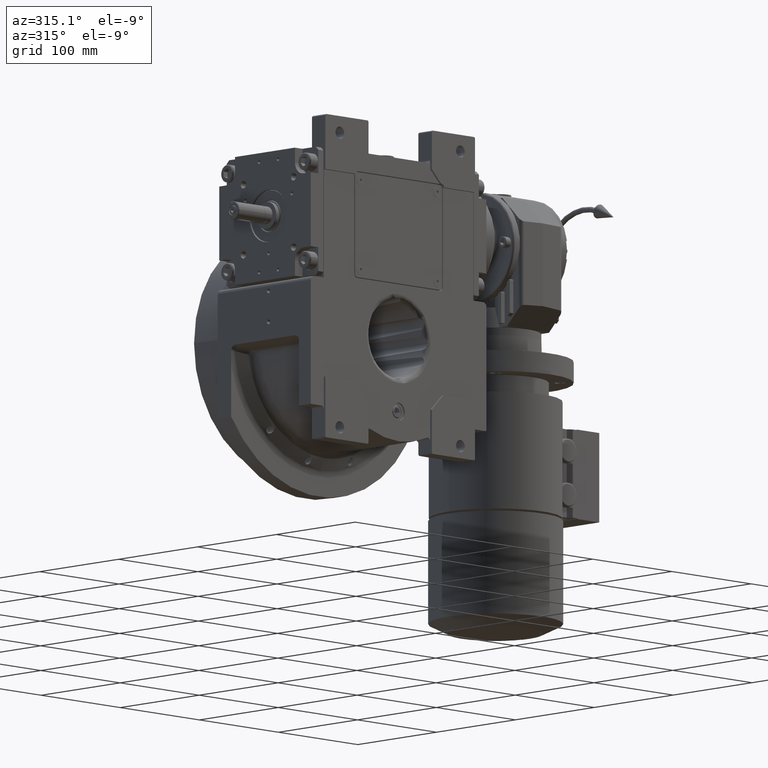
[diagram: clean part render]
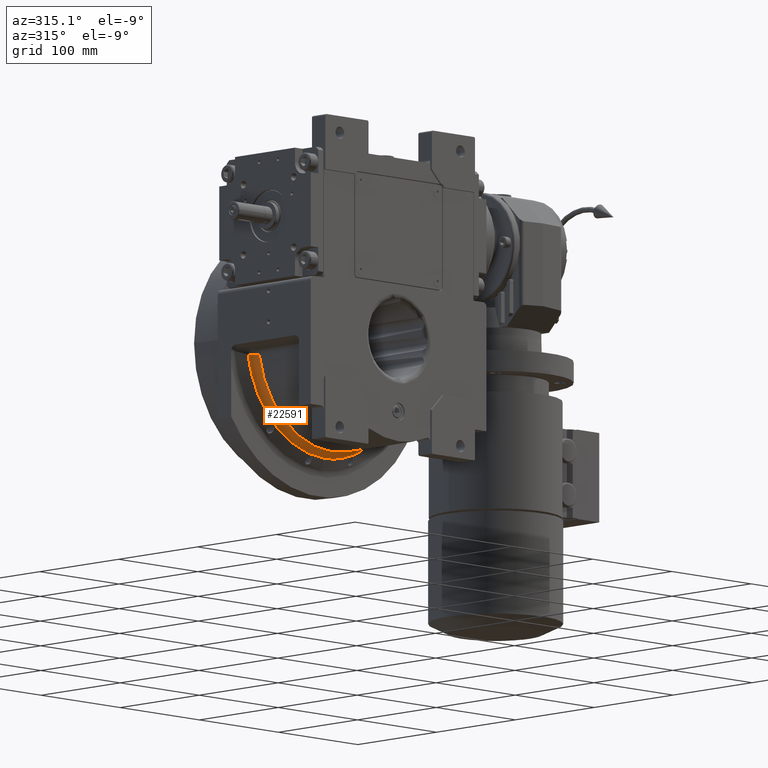
[diagram: same view with one face highlighted and labeled with its STEP entity id]
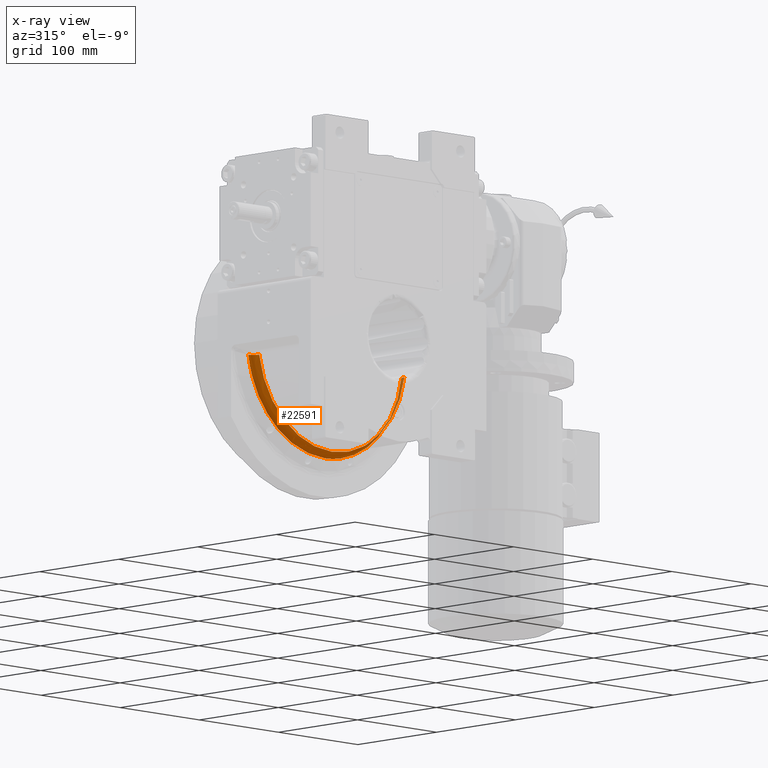
[diagram: x-ray of the same camera — body ghosted, the highlighted face saturated]
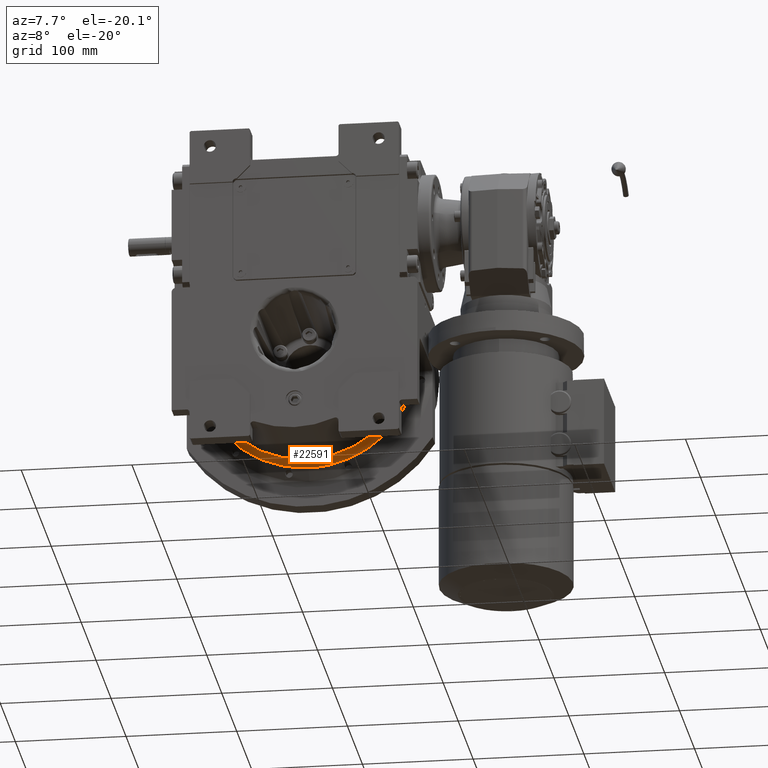
[diagram: same view with one face highlighted and labeled with its STEP entity id]
A machine part, auxiliary view. The second image highlights one B-rep face of the part: STEP entity #22591.
The next image is the same camera in x-ray: the body ghosted, the highlighted face saturated — about 9% of this face is hidden behind the body in this view.
A second angle (auxiliary view) of the same face is appended — the face is thin or edge-on in the first view.
In plain terms, the highlighted toroidal blend (fillet) surface has major radius 103 mm and minor (blend) radius 10 mm.
Its self-contained STEP definition (entity closure, byte-faithful):
#794 = CARTESIAN_POINT ( 'NONE',  ( 92.32204240605643975, 34.63167074273234647, -15.16718958915075888 ) ) ;
#1544 = CARTESIAN_POINT ( 'NONE',  ( 96.85710769208640158, 39.87901816609754491, -14.92320608909719937 ) ) ;
#1820 = CARTESIAN_POINT ( 'NONE',  ( 96.43645496120839766, 39.64115437283938803, -14.94760659334819586 ) ) ;
#2908 = EDGE_CURVE ( 'NONE', #48997, #42578, #82104, .T. ) ;
#6021 = VERTEX_POINT ( 'NONE', #33137 ) ;
#8811 = CARTESIAN_POINT ( 'NONE',  ( -9.226961790163737573E-14, 39.87903547113305081, -97.99999599669763484 ) ) ;
#9130 = CARTESIAN_POINT ( 'NONE',  ( -93.34500353723157673, 36.59997510740267757, -15.11636425752244151 ) ) ;
#9654 = CARTESIAN_POINT ( 'NONE',  ( -94.61480453581214078, 38.16329668810526954, -15.04946020151750830 ) ) ;
#11076 = ORIENTED_EDGE ( 'NONE', *, *, #2908, .T. ) ;
#12605 = B_SPLINE_CURVE_WITH_KNOTS ( 'NONE', 3,
 ( #88508, #87991, #17403, #63610, #46989, #49045, #54792, #24152, #48014, #30924, #16891, #87484, #72941, #9130, #63102, #80714, #64662, #48534, #79173, #9654, #70884, #23140, #23655, #80205, #47507, #55811, #40760 ),
 .UNSPECIFIED., .F., .F.,
 ( 4, 2, 2, 2, 1, 1, 2, 2, 2, 2, 1, 1, 1, 2, 2, 4 ),
 ( 0.000000000000000000, 0.2500000000000277001, 0.3750000000000425215, 0.4375000000000500155, 0.4687500000000546785, 0.4843750000000570100, 0.4921875000000591194, 0.5000000000000612843, 0.6250000000000721645, 0.6875000000000774936, 0.7187500000000807132, 0.7343750000000817124, 0.7421875000000822675, 0.7460937500000824896, 0.7500000000000826006, 1.000000000000000000 ),
 .UNSPECIFIED. ) ;
#12697 = DIRECTION ( 'NONE',  ( -3.444184274207035004E-17, -1.000000000000000000, 1.866217551492050167E-18 ) ) ;
#16837 = CARTESIAN_POINT ( 'NONE',  ( 91.75021695200699412, 32.07163873125715980, -15.19531800824134571 ) ) ;
#16891 = CARTESIAN_POINT ( 'NONE',  ( -93.07436984289471127, 36.14255172669999183, -15.13018490521599624 ) ) ;
#17084 = CARTESIAN_POINT ( 'NONE',  ( 89.14033502477229831, 39.87903548673092757, -65.00782844516591297 ) ) ;
#17403 = CARTESIAN_POINT ( 'NONE',  ( -91.86243524609182032, 32.93675489758972930, -15.18941360579236388 ) ) ;
#18692 =( BOUNDED_CURVE ( )  B_SPLINE_CURVE ( 3, ( #1544, #17084, #79352, #8811 ),
 .UNSPECIFIED., .F., .F. ) 
 B_SPLINE_CURVE_WITH_KNOTS ( ( 4, 4 ),
 ( 1.725049350037650031, 3.142973286274644895 ),
 .UNSPECIFIED. ) 
 CURVE ( )  GEOMETRIC_REPRESENTATION_ITEM ( )  RATIONAL_B_SPLINE_CURVE ( ( 1.000000000000000000, 0.8393587276889801219, 0.8393587276889801219, 1.000000000000000000 ) ) 
 REPRESENTATION_ITEM ( '' )  );
#21477 = DIRECTION ( 'NONE',  ( 0.9985352390207220541, -3.449236581359708725E-17, -0.05410523480985400535 ) ) ;
#22591 = ADVANCED_FACE ( 'NONE', ( #38577 ), #26866, .F. ) ;
#23140 = CARTESIAN_POINT ( 'NONE',  ( -94.71631468964486089, 38.26444829618387899, -15.04398509723695021 ) ) ;
#23655 = CARTESIAN_POINT ( 'NONE',  ( -94.73679542291178279, 38.28458899849099595, -15.04287820704028533 ) ) ;
#24152 = CARTESIAN_POINT ( 'NONE',  ( -92.85706712798210560, 35.74724135097842037, -15.14111248674943866 ) ) ;
#24617 = CARTESIAN_POINT ( 'NONE',  ( 93.18548347312724900, 36.33003888983931517, -15.12451147329382195 ) ) ;
#25141 = CARTESIAN_POINT ( 'NONE',  ( 94.77502878599159430, 38.32187962487090971, -15.04080872374902533 ) ) ;
#26866 = TOROIDAL_SURFACE ( 'NONE', #61602, 103.0000000000000000, 10.00000000000000000 ) ;
#27476 = DIRECTION ( 'NONE',  ( 0.9865608847851539132, -1.678764654171103455E-15, -0.1633940654122239822 ) ) ;
#28378 = CARTESIAN_POINT ( 'NONE',  ( -91.75030103113060420, 31.21878279875124917, -15.19503959111690072 ) ) ;
#30427 = CARTESIAN_POINT ( 'NONE',  ( -89.14033501822824235, 39.87903545553515983, -65.00782844006340611 ) ) ;
#30924 = CARTESIAN_POINT ( 'NONE',  ( -93.03205353950460221, 36.06908570917927648, -15.13233289082379862 ) ) ;
#30938 = CARTESIAN_POINT ( 'NONE',  ( -96.85709795745168549, 39.87903522507845366, -14.92320458950059958 ) ) ;
#31371 = CARTESIAN_POINT ( 'NONE',  ( 94.12793779986111531, 37.64706603313845079, -15.07546810111043101 ) ) ;
#31796 = EDGE_LOOP ( 'NONE', ( #11076, #98310, #70482, #93087, #60416 ) ) ;
#32406 = CARTESIAN_POINT ( 'NONE',  ( 96.85710769208640158, 39.87901816609754491, -14.92320608909719937 ) ) ;
#32924 = CARTESIAN_POINT ( 'NONE',  ( 93.14600945989805325, 36.26450655552133640, -15.12653236979147664 ) ) ;
#33137 = CARTESIAN_POINT ( 'NONE',  ( -9.226961790163737573E-14, 39.87903547113305081, -97.99999599669763484 ) ) ;
#33432 = CARTESIAN_POINT ( 'NONE',  ( 95.36250282372485287, 38.85180114626675874, -15.00841708843491240 ) ) ;
#38577 = FACE_OUTER_BOUND ( 'NONE', #31796, .T. ) ;
#40760 = CARTESIAN_POINT ( 'NONE',  ( -96.85709795745168549, 39.87903522507845366, -14.92320458950059958 ) ) ;
#42578 = VERTEX_POINT ( 'NONE', #28378 ) ;
#45314 = CARTESIAN_POINT ( 'NONE',  ( -4.517455316885850268E-28, 31.21878281274445044, 0.000000000000000000 ) ) ;
#46933 = CARTESIAN_POINT ( 'NONE',  ( 93.32449278843465379, 36.55397011505458238, -15.11737131457517336 ) ) ;
#46989 = CARTESIAN_POINT ( 'NONE',  ( -92.35130654954592444, 34.62714478310525834, -15.16584884260769250 ) ) ;
#47442 = CARTESIAN_POINT ( 'NONE',  ( 95.12627367511505838, 38.64762270606092898, -15.02154952942560762 ) ) ;
#47507 = CARTESIAN_POINT ( 'NONE',  ( -95.32163976080461509, 38.85488166140381594, -15.01122830461017088 ) ) ;
#47960 = CARTESIAN_POINT ( 'NONE',  ( 94.79278921998292162, 38.33907037695012576, -15.03984540845728368 ) ) ;
#48014 = CARTESIAN_POINT ( 'NONE',  ( -92.93565867191826158, 35.89666686376956051, -15.13719495145634042 ) ) ;
#48475 = CARTESIAN_POINT ( 'NONE',  ( 95.52838985242588876, 38.98672249498758191, -14.99911021756371454 ) ) ;
#48534 = CARTESIAN_POINT ( 'NONE',  ( -94.36020064412448960, 37.89585421160228407, -15.06309071816676415 ) ) ;
#48997 = VERTEX_POINT ( 'NONE', #51093 ) ;
#49045 = CARTESIAN_POINT ( 'NONE',  ( -92.61133489695058074, 35.24318892788890878, -15.15322299822900298 ) ) ;
#51093 = CARTESIAN_POINT ( 'NONE',  ( 91.75016228501930016, 31.21878281274259948, -15.19564808333685058 ) ) ;
#52024 = VERTEX_POINT ( 'NONE', #69254 ) ;
#52056 = CARTESIAN_POINT ( 'NONE',  ( 96.85710769208640158, 39.87901816609754491, -14.92320608909719937 ) ) ;
#54730 = CARTESIAN_POINT ( 'NONE',  ( 94.88256542447922470, 38.42498196245097120, -15.03496025070257502 ) ) ;
#54792 = CARTESIAN_POINT ( 'NONE',  ( -92.70529646377556787, 35.44640108958090963, -15.14863136810667932 ) ) ;
#55240 = CARTESIAN_POINT ( 'NONE',  ( 93.41247699215585953, 36.68741111161953938, -15.11282544456096844 ) ) ;
#55811 = CARTESIAN_POINT ( 'NONE',  ( -96.01575116225822626, 39.40323916108975055, -14.97201222673670529 ) ) ;
#56270 = CARTESIAN_POINT ( 'NONE',  ( 93.22649337317844243, 36.39734521838529702, -15.12240922812150856 ) ) ;
#56790 = CARTESIAN_POINT ( 'NONE',  ( 94.81952392417289843, 38.36485287603925798, -15.03839378779375835 ) ) ;
#60416 = ORIENTED_EDGE ( 'NONE', *, *, #92636, .T. ) ;
#60520 =( BOUNDED_CURVE ( )  B_SPLINE_CURVE ( 3, ( #61088, #84969, #30427, #30938 ),
 .UNSPECIFIED., .F., .F. ) 
 B_SPLINE_CURVE_WITH_KNOTS ( ( 4, 4 ),
 ( 3.142973286274644895, 4.560897222382970462 ),
 .UNSPECIFIED. ) 
 CURVE ( )  GEOMETRIC_REPRESENTATION_ITEM ( )  RATIONAL_B_SPLINE_CURVE ( ( 1.000000000000000000, 0.8393587277169034522, 0.8393587277169034522, 1.000000000000000000 ) ) 
 REPRESENTATION_ITEM ( '' )  );
#61088 = CARTESIAN_POINT ( 'NONE',  ( -9.226961790163737573E-14, 39.87903547113305081, -97.99999599669763484 ) ) ;
#61602 = AXIS2_PLACEMENT_3D ( 'NONE', #45314, #12697, #21477 ) ;
#63102 = CARTESIAN_POINT ( 'NONE',  ( -93.58647493149591412, 36.95529582259712953, -15.10385405343757093 ) ) ;
#63610 = CARTESIAN_POINT ( 'NONE',  ( -92.20713085096697625, 34.20791438985033039, -15.17274392116164705 ) ) ;
#64078 = CARTESIAN_POINT ( 'NONE',  ( 95.01130748181392960, 38.54508199916480748, -15.02790831500245439 ) ) ;
#64662 = CARTESIAN_POINT ( 'NONE',  ( -94.13517602163261699, 37.64462023437468474, -15.07504727411635415 ) ) ;
#67952 = DIRECTION ( 'NONE',  ( 5.743225055535190204E-15, 1.000000000000000000, 2.439003765979129920E-14 ) ) ;
#68378 = EDGE_CURVE ( 'NONE', #91778, #6021, #18692, .T. ) ;
#69254 = CARTESIAN_POINT ( 'NONE',  ( -96.85709795745168549, 39.87903522507845366, -14.92320458950059958 ) ) ;
#70482 = ORIENTED_EDGE ( 'NONE', *, *, #89914, .F. ) ;
#70827 = CARTESIAN_POINT ( 'NONE',  ( 94.76765896782438858, 38.31472517732135685, -15.04120811764683019 ) ) ;
#70884 = CARTESIAN_POINT ( 'NONE',  ( -94.68568005237736429, 38.23419351709857494, -15.04563966551404164 ) ) ;
#72941 = CARTESIAN_POINT ( 'NONE',  ( -93.11823127098385555, 36.21767747878050159, -15.12795177440984418 ) ) ;
#75450 = AXIS2_PLACEMENT_3D ( 'NONE', #98633, #67952, #27476 ) ;
#79117 = CARTESIAN_POINT ( 'NONE',  ( 93.15836278664464487, 36.28512999812676298, -15.12590033579409088 ) ) ;
#79173 = CARTESIAN_POINT ( 'NONE',  ( -94.47547497222841173, 38.02032339801947103, -15.05694268736777452 ) ) ;
#79352 = CARTESIAN_POINT ( 'NONE',  ( 50.67561382229939682, 39.87903548000032572, -97.99999599986676913 ) ) ;
#79630 = CARTESIAN_POINT ( 'NONE',  ( 92.66952726990713529, 35.46124320583766121, -15.15088229258502572 ) ) ;
#80205 = CARTESIAN_POINT ( 'NONE',  ( -94.74854578481331657, 38.29608898670825567, -15.04224268228467665 ) ) ;
#80714 = CARTESIAN_POINT ( 'NONE',  ( -93.99252845294486747, 37.47407241526042299, -15.08256646251302513 ) ) ;
#81103 = EDGE_CURVE ( 'NONE', #42578, #52024, #12605, .T. ) ;
#82104 = CIRCLE ( 'NONE', #75450, 93.00000000000001421 ) ;
#84969 = CARTESIAN_POINT ( 'NONE',  ( -50.67561381681266397, 39.87903546226575457, -97.99999599352845792 ) ) ;
#86418 = CARTESIAN_POINT ( 'NONE',  ( 94.42786900662497374, 37.98341469119410618, -15.05959796905412063 ) ) ;
#86913 = CARTESIAN_POINT ( 'NONE',  ( 93.72187973110938231, 37.12829298566084901, -15.09675511601833797 ) ) ;
#87484 = CARTESIAN_POINT ( 'NONE',  ( -93.10280341673316684, 36.19143197862474182, -15.12873843835923893 ) ) ;
#87936 = CARTESIAN_POINT ( 'NONE',  ( 93.59381837072852761, 36.95298514234842457, -15.10342763479789241 ) ) ;
#87991 = CARTESIAN_POINT ( 'NONE',  ( -91.75021695601039085, 32.07161283199356916, -15.19531798406919521 ) ) ;
#88508 = CARTESIAN_POINT ( 'NONE',  ( -91.75030103113060420, 31.21878279875124917, -15.19503959111690072 ) ) ;
#88655 = B_SPLINE_CURVE_WITH_KNOTS ( 'NONE', 3,
 ( #32406, #1820, #96282, #48475, #33432, #47442, #64078, #54730, #56790, #47960, #25141, #70827, #86418, #31371, #86913, #87936, #55240, #46933, #56270, #24617, #79117, #32924, #79630, #794, #95767, #16837, #102522 ),
 .UNSPECIFIED., .F., .F.,
 ( 4, 2, 2, 1, 1, 1, 2, 2, 2, 2, 1, 1, 2, 2, 2, 4 ),
 ( 0.000000000000000000, 0.1249999999999725220, 0.1874999999999587830, 0.2187499999999503730, 0.2343749999999468758, 0.2421874999999451272, 0.2460937499999442390, 0.2499999999999433509, 0.3749999999999559797, 0.4374999999999614753, 0.4687499999999645839, 0.4843749999999669709, 0.4921874999999692468, 0.4999999999999715783, 0.7499999999999857891, 1.000000000000000000 ),
 .UNSPECIFIED. ) ;
#89914 = EDGE_CURVE ( 'NONE', #6021, #52024, #60520, .T. ) ;
#91778 = VERTEX_POINT ( 'NONE', #52056 ) ;
#92636 = EDGE_CURVE ( 'NONE', #91778, #48997, #88655, .T. ) ;
#93087 = ORIENTED_EDGE ( 'NONE', *, *, #68378, .F. ) ;
#95767 = CARTESIAN_POINT ( 'NONE',  ( 91.86244182290010940, 32.93679328701041698, -15.18941474239577083 ) ) ;
#96282 = CARTESIAN_POINT ( 'NONE',  ( 96.05222172876865727, 39.38472949819187363, -14.96952494069545736 ) ) ;
#98310 = ORIENTED_EDGE ( 'NONE', *, *, #81103, .T. ) ;
#98633 = CARTESIAN_POINT ( 'NONE',  ( 1.421085471520200056E-14, 31.21878281274215183, 0.000000000000000000 ) ) ;
#102522 = CARTESIAN_POINT ( 'NONE',  ( 91.75016228501930016, 31.21878281274259948, -15.19564808333685058 ) ) ;